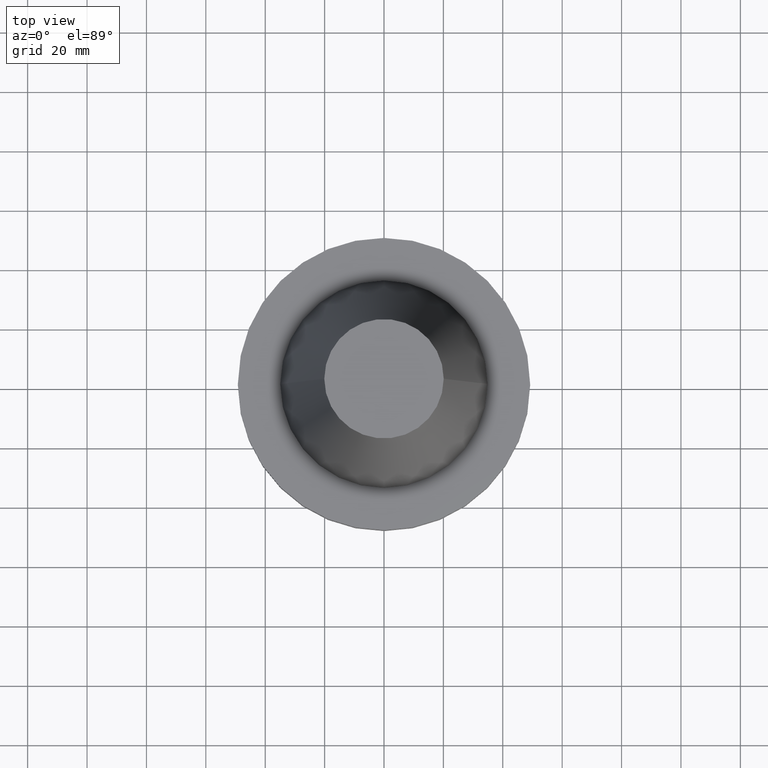
[diagram: clean part render]
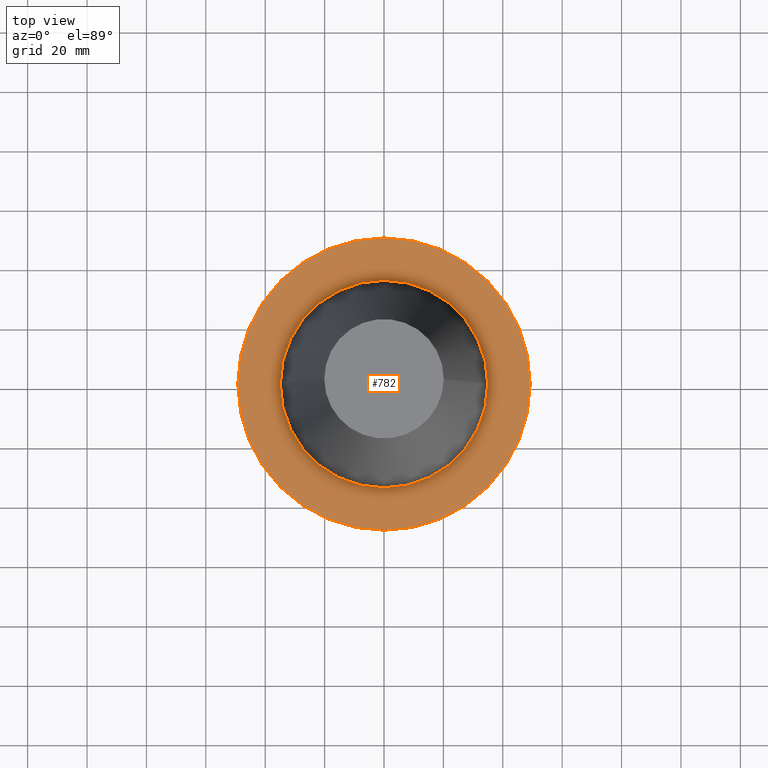
[diagram: same view with one face highlighted and labeled with its STEP entity id]
A machine part, top view. The second image highlights one B-rep face of the part: STEP entity #782.
In plain terms, the highlighted planar face has unit normal (0, 0, -1).
Its self-contained STEP definition (entity closure, byte-faithful):
#15 = EDGE_CURVE ( 'NONE', #599, #219, #85, .T. ) ;
#24 = CARTESIAN_POINT ( 'NONE',  ( 49.21499999999999631, 0.000000000000000000, -1.499999999999987566 ) ) ;
#31 = AXIS2_PLACEMENT_3D ( 'NONE', #416, #603, #284 ) ;
#35 = DIRECTION ( 'NONE',  ( -1.000000000000000000, 0.000000000000000000, -0.000000000000000000 ) ) ;
#49 = EDGE_LOOP ( 'NONE', ( #342, #236 ) ) ;
#65 = CIRCLE ( 'NONE', #746, 34.92499999999999005 ) ;
#85 = CIRCLE ( 'NONE', #31, 49.21499999999999631 ) ;
#107 = DIRECTION ( 'NONE',  ( -0.000000000000000000, -0.000000000000000000, 1.000000000000000000 ) ) ;
#112 = CARTESIAN_POINT ( 'NONE',  ( 34.92499999999999005, 0.000000000000000000, -1.499999999999987566 ) ) ;
#120 = FACE_OUTER_BOUND ( 'NONE', #49, .T. ) ;
#156 = AXIS2_PLACEMENT_3D ( 'NONE', #487, #503, #438 ) ;
#175 = VERTEX_POINT ( 'NONE', #112 ) ;
#203 = EDGE_CURVE ( 'NONE', #175, #772, #65, .T. ) ;
#219 = VERTEX_POINT ( 'NONE', #306 ) ;
#236 = ORIENTED_EDGE ( 'NONE', *, *, #671, .T. ) ;
#254 = EDGE_CURVE ( 'NONE', #772, #175, #539, .T. ) ;
#269 = CIRCLE ( 'NONE', #526, 49.21499999999999631 ) ;
#284 = DIRECTION ( 'NONE',  ( 1.000000000000000000, 0.000000000000000000, 0.000000000000000000 ) ) ;
#292 = DIRECTION ( 'NONE',  ( -0.000000000000000000, -0.000000000000000000, 1.000000000000000000 ) ) ;
#306 = CARTESIAN_POINT ( 'NONE',  ( -49.21499999999999631, 6.027099222003697826E-15, -1.499999999999987566 ) ) ;
#342 = ORIENTED_EDGE ( 'NONE', *, *, #15, .T. ) ;
#416 = CARTESIAN_POINT ( 'NONE',  ( 0.000000000000000000, 0.000000000000000000, -1.499999999999987566 ) ) ;
#436 = DIRECTION ( 'NONE',  ( 0.000000000000000000, 0.000000000000000000, -1.000000000000000000 ) ) ;
#438 = DIRECTION ( 'NONE',  ( 1.000000000000000000, 0.000000000000000000, 0.000000000000000000 ) ) ;
#439 = PLANE ( 'NONE',  #820 ) ;
#451 = EDGE_LOOP ( 'NONE', ( #459, #490 ) ) ;
#459 = ORIENTED_EDGE ( 'NONE', *, *, #203, .F. ) ;
#477 = DIRECTION ( 'NONE',  ( 1.000000000000000000, 0.000000000000000000, 0.000000000000000000 ) ) ;
#487 = CARTESIAN_POINT ( 'NONE',  ( 0.000000000000000000, 0.000000000000000000, -1.499999999999987566 ) ) ;
#490 = ORIENTED_EDGE ( 'NONE', *, *, #254, .F. ) ;
#492 = DIRECTION ( 'NONE',  ( 1.000000000000000000, 0.000000000000000000, 0.000000000000000000 ) ) ;
#503 = DIRECTION ( 'NONE',  ( -0.000000000000000000, -0.000000000000000000, 1.000000000000000000 ) ) ;
#526 = AXIS2_PLACEMENT_3D ( 'NONE', #556, #292, #477 ) ;
#539 = CIRCLE ( 'NONE', #156, 34.92499999999999005 ) ;
#556 = CARTESIAN_POINT ( 'NONE',  ( 0.000000000000000000, 0.000000000000000000, -1.499999999999987566 ) ) ;
#572 = FACE_BOUND ( 'NONE', #451, .T. ) ;
#575 = CARTESIAN_POINT ( 'NONE',  ( 0.000000000000000000, 0.000000000000000000, -1.499999999999987566 ) ) ;
#599 = VERTEX_POINT ( 'NONE', #24 ) ;
#603 = DIRECTION ( 'NONE',  ( -0.000000000000000000, -0.000000000000000000, 1.000000000000000000 ) ) ;
#671 = EDGE_CURVE ( 'NONE', #219, #599, #269, .T. ) ;
#710 = CARTESIAN_POINT ( 'NONE',  ( -34.92499999999999005, 4.277078946022130098E-15, -1.499999999999987566 ) ) ;
#715 = CARTESIAN_POINT ( 'NONE',  ( 0.000000000000000000, 49.21499999999999631, -1.499999999999992895 ) ) ;
#746 = AXIS2_PLACEMENT_3D ( 'NONE', #575, #107, #492 ) ;
#772 = VERTEX_POINT ( 'NONE', #710 ) ;
#782 = ADVANCED_FACE ( 'NONE', ( #572, #120 ), #439, .F. ) ;
#820 = AXIS2_PLACEMENT_3D ( 'NONE', #715, #436, #35 ) ;